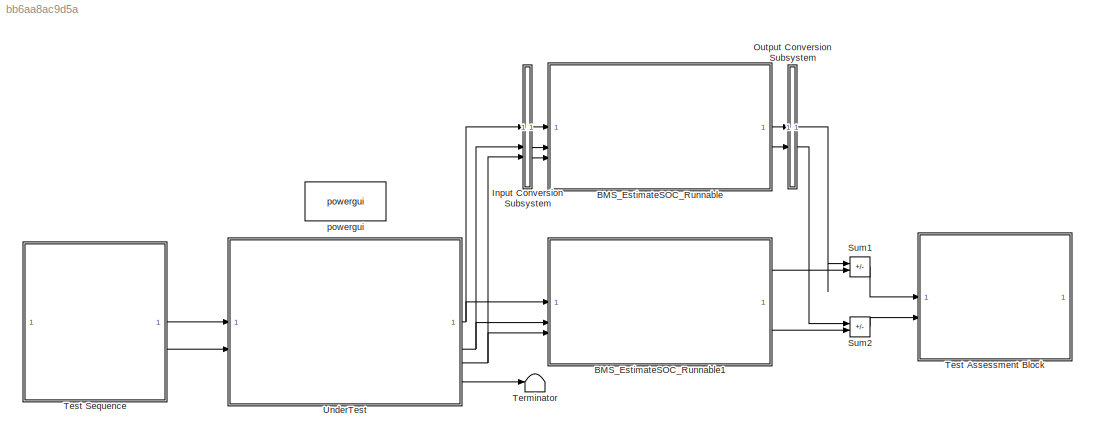
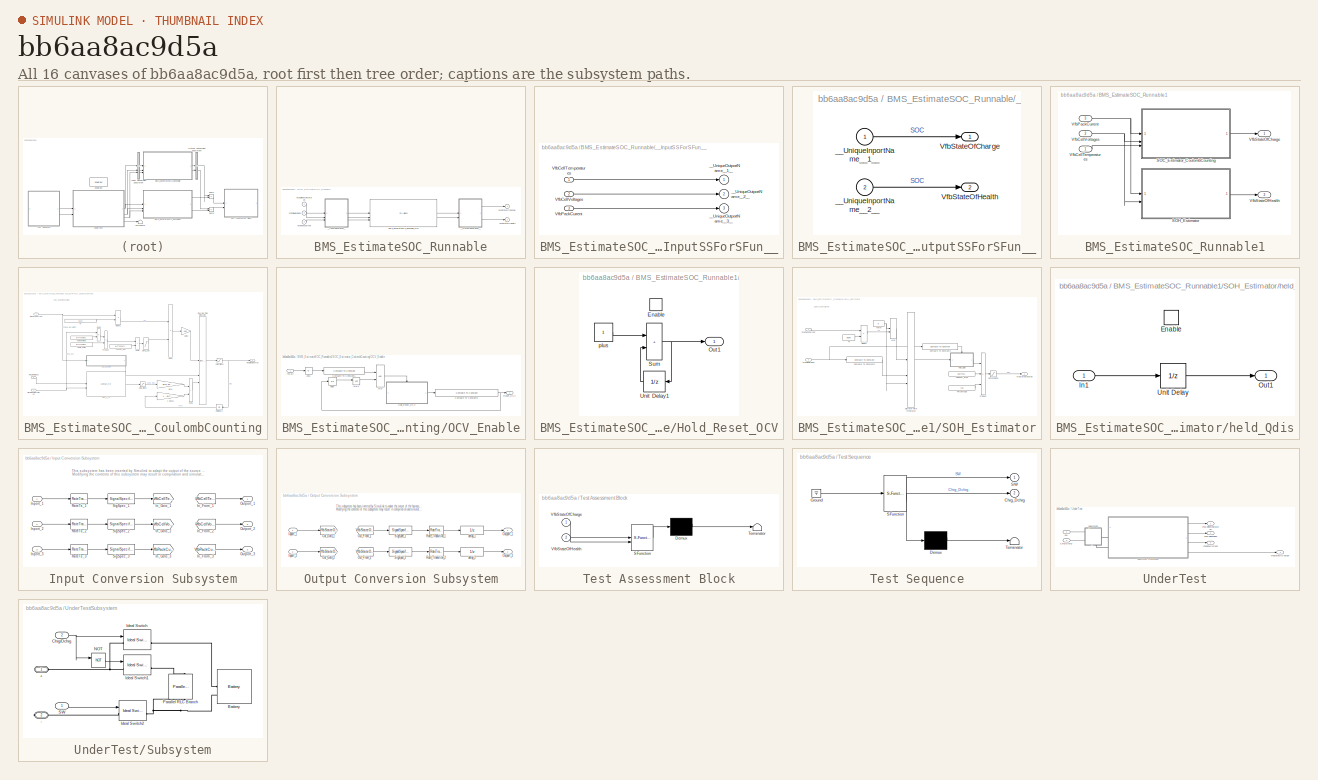
[diagram: thumbnail index - all 16 canvases of the model, root first then tree order]
MODEL slx_bb6aa8ac9d5a
KIND model
CONFIG AbsTol = auto
CONFIG EnableMultiTasking = on
CONFIG FixedStep = auto
CONFIG MaxStep = auto
CONFIG MinStep = auto
CONFIG RelTol = 1e-3
CONFIG SampleTimeConstraint = Unconstrained
CONFIG SolverName = FixedStepDiscrete
CONFIG StartTime = 0.0
CONFIG StopTime = 10.0
BLOCK [SubSystem] BMS_EstimateSOC_Runnable
  DialogController = pil_create_dialog
  LoadFcn = try\n   if ~strcmp(rtw.pil.getPILVersion, '9.13 (R2022b)_15')\n      set_param(gcb, 'DialogController', '');\n      set_param(gcb, 'DialogControllerArgs', '');\n   end\ncatch e\n      set_param(gcb, 'DialogController', '');\n      set_param(gcb, 'DialogControllerArgs', '');\nend
  Tag = __SL_testing_harness_stub_
BLOCK [Reference] BMS_EstimateSOC_Runnable/BMS_EstimateSOC_Runnable_sfcn  REF=pil_lib/PIL Block
  SourceBlock = pil_lib/PIL Block
  SourceType = XILBlock
BLOCK [Inport] BMS_EstimateSOC_Runnable/VfbCellTemperatures
  PortDimensions = BATT.Package.NumModules
BLOCK [Inport] BMS_EstimateSOC_Runnable/VfbCellVoltages
  Port = 2
  PortDimensions = BATT.Package.NumModules
BLOCK [Inport] BMS_EstimateSOC_Runnable/VfbPackCurrent
  Port = 3
BLOCK [Outport] BMS_EstimateSOC_Runnable/VfbStateOfCharge
BLOCK [Outport] BMS_EstimateSOC_Runnable/VfbStateOfHealth
  Port = 2
BLOCK [SubSystem] BMS_EstimateSOC_Runnable/__InputSSForSFun__
  PermitHierarchicalResolution = ExplicitOnly
BLOCK [Inport] BMS_EstimateSOC_Runnable/__InputSSForSFun__/VfbCellTemperatures
  PortDimensions = BATT.Package.NumModules
BLOCK [Inport] BMS_EstimateSOC_Runnable/__InputSSForSFun__/VfbCellVoltages
  Port = 2
  PortDimensions = BATT.Package.NumModules
BLOCK [Inport] BMS_EstimateSOC_Runnable/__InputSSForSFun__/VfbPackCurrent
  Port = 3
BLOCK [Outport] BMS_EstimateSOC_Runnable/__InputSSForSFun__/__UniqueOutportName__1__
BLOCK [Outport] BMS_EstimateSOC_Runnable/__InputSSForSFun__/__UniqueOutportName__2__
  Port = 2
BLOCK [Outport] BMS_EstimateSOC_Runnable/__InputSSForSFun__/__UniqueOutportName__3__
  Port = 3
BLOCK [SubSystem] BMS_EstimateSOC_Runnable/__OutputSSForSFun__
  PermitHierarchicalResolution = ExplicitOnly
BLOCK [Outport] BMS_EstimateSOC_Runnable/__OutputSSForSFun__/VfbStateOfCharge
BLOCK [Outport] BMS_EstimateSOC_Runnable/__OutputSSForSFun__/VfbStateOfHealth
  Port = 2
BLOCK [Inport] BMS_EstimateSOC_Runnable/__OutputSSForSFun__/__UniqueInportName__1__
BLOCK [Inport] BMS_EstimateSOC_Runnable/__OutputSSForSFun__/__UniqueInportName__2__
  Port = 2
BLOCK [SubSystem] BMS_EstimateSOC_Runnable1
  FunctionInterfaceSpec = Allow arguments (Optimized)
  PartitionName = BMS_EstimateSOC_Task
  Priority = 3
  RTWFcnNameOpts = Use subsystem name
  RTWSystemCode = Nonreusable function
  ScheduleAs = Periodic partition
  SystemSampleTime = Schedule.BMS_EstimateSOC_Task
  Tag = BMS_EstimateSOC_Task
  TreatAsAtomicUnit = on
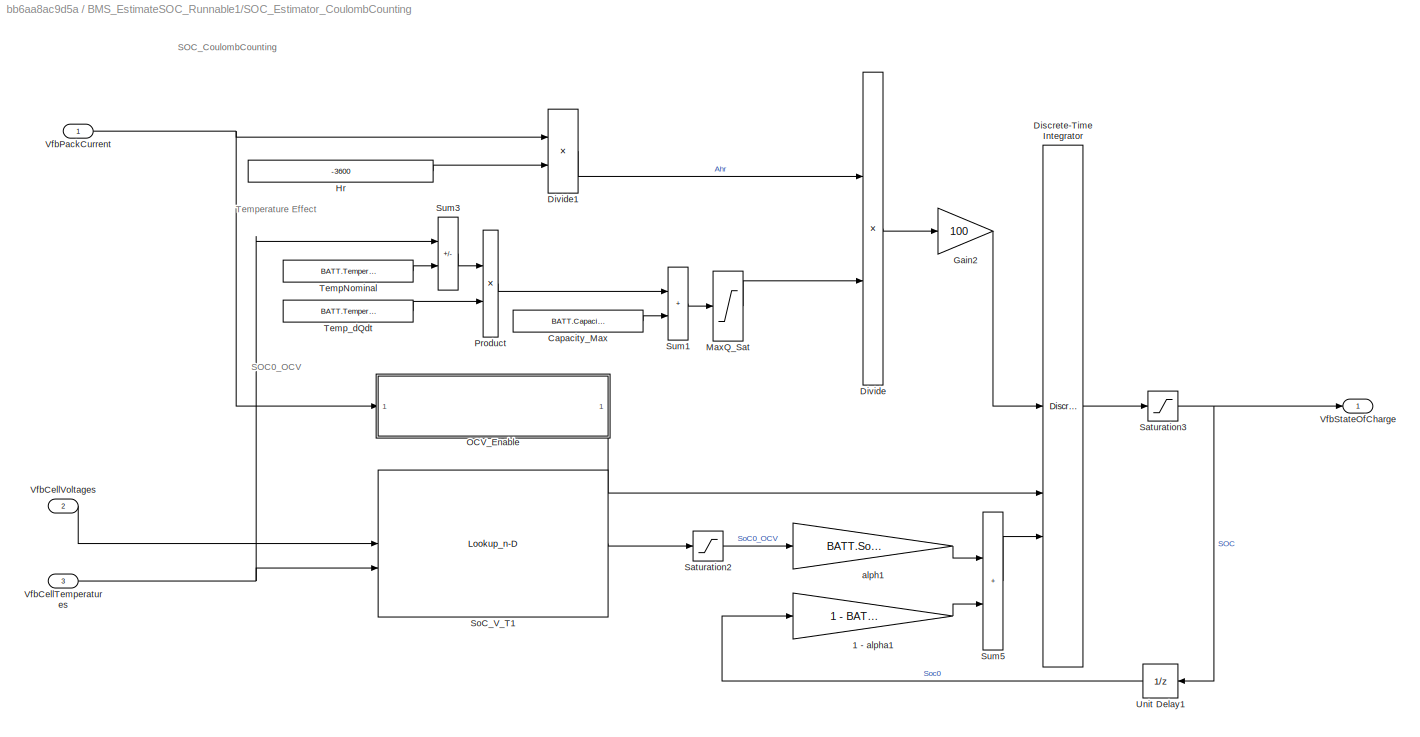
BLOCK [SubSystem] BMS_EstimateSOC_Runnable1/SOC_Estimator_CoulombCounting
  FunctionInterfaceSpec = Allow arguments (Optimized)
  RTWSystemCode = Nonreusable function
  TreatAsAtomicUnit = on
BLOCK [Gain] BMS_EstimateSOC_Runnable1/SOC_Estimator_CoulombCounting/1 - alpha1
  Gain = 1 - BATT.SoC.alpha
BLOCK [Constant] BMS_EstimateSOC_Runnable1/SOC_Estimator_CoulombCounting/Capacity_Max
  Value = BATT.Capacity.Max
BLOCK [DiscreteIntegrator] BMS_EstimateSOC_Runnable1/SOC_Estimator_CoulombCounting/Discrete-Time Integrator
  ExternalReset = rising
  ICPrevOutput = DiscIntNeverNeededParam
  ICPrevScaledInput = DiscIntNeverNeededParam
  InitialCondition = BATT.SOC.SoC0
  InitialConditionSource = external
  SampleTime = -1
BLOCK [Product] BMS_EstimateSOC_Runnable1/SOC_Estimator_CoulombCounting/Divide
  Inputs = */
  NameLocation = top
  OutDataTypeStr = single
BLOCK [Product] BMS_EstimateSOC_Runnable1/SOC_Estimator_CoulombCounting/Divide1
  Inputs = */
BLOCK [Gain] BMS_EstimateSOC_Runnable1/SOC_Estimator_CoulombCounting/Gain2
  Gain = 100
  OutDataTypeStr = single
BLOCK [Constant] BMS_EstimateSOC_Runnable1/SOC_Estimator_CoulombCounting/Hr
  OutDataTypeStr = single
  Value = -3600
BLOCK [Saturate] BMS_EstimateSOC_Runnable1/SOC_Estimator_CoulombCounting/MaxQ_Sat
  LowerLimit = 0
  UpperLimit = BATT.Capacity.Max
BLOCK [SubSystem] BMS_EstimateSOC_Runnable1/SOC_Estimator_CoulombCounting/OCV_Enable
BLOCK [Logic] BMS_EstimateSOC_Runnable1/SOC_Estimator_CoulombCounting/OCV_Enable/AND
  AllPortsSameDT = off
  OutDataTypeStr = boolean
BLOCK [Abs] BMS_EstimateSOC_Runnable1/SOC_Estimator_CoulombCounting/OCV_Enable/Abs1
  SaturateOnIntegerOverflow = off
BLOCK [Reference] BMS_EstimateSOC_Runnable1/SOC_Estimator_CoulombCounting/OCV_Enable/Compare To Constant1  REF=simulink/Logic and Bit
Operations/Compare
To Constant
  SourceBlock = simulink/Logic and Bit\nOperations/Compare\nTo Constant
  SourceType = Compare To Constant
BLOCK [Reference] BMS_EstimateSOC_Runnable1/SOC_Estimator_CoulombCounting/OCV_Enable/Compare To Constant2  REF=simulink/Logic and Bit
Operations/Compare
To Constant
  SourceBlock = simulink/Logic and Bit\nOperations/Compare\nTo Constant
  SourceType = Compare To Constant
BLOCK [SubSystem] BMS_EstimateSOC_Runnable1/SOC_Estimator_CoulombCounting/OCV_Enable/Hold_Reset_OCV
BLOCK [EnablePort] BMS_EstimateSOC_Runnable1/SOC_Estimator_CoulombCounting/OCV_Enable/Hold_Reset_OCV/Enable
  StatesWhenEnabling = reset
BLOCK [Outport] BMS_EstimateSOC_Runnable1/SOC_Estimator_CoulombCounting/OCV_Enable/Hold_Reset_OCV/Out1
  InitialOutput = 0
  OutputWhenDisabled = reset
BLOCK [Sum] BMS_EstimateSOC_Runnable1/SOC_Estimator_CoulombCounting/OCV_Enable/Hold_Reset_OCV/Sum
  IconShape = rectangular
BLOCK [UnitDelay] BMS_EstimateSOC_Runnable1/SOC_Estimator_CoulombCounting/OCV_Enable/Hold_Reset_OCV/Unit Delay1
  HasFrameUpgradeWarning = on
  SampleTime = -1
BLOCK [Constant] BMS_EstimateSOC_Runnable1/SOC_Estimator_CoulombCounting/OCV_Enable/Hold_Reset_OCV/plus
BLOCK [Inport] BMS_EstimateSOC_Runnable1/SOC_Estimator_CoulombCounting/OCV_Enable/InCurr
BLOCK [Logic] BMS_EstimateSOC_Runnable1/SOC_Estimator_CoulombCounting/OCV_Enable/NOT
  AllPortsSameDT = off
  Operator = NOT
  OutDataTypeStr = boolean
BLOCK [Outport] BMS_EstimateSOC_Runnable1/SOC_Estimator_CoulombCounting/OCV_Enable/Reset_OCV
BLOCK [UnitDelay] BMS_EstimateSOC_Runnable1/SOC_Estimator_CoulombCounting/OCV_Enable/delay
  HasFrameUpgradeWarning = on
  SampleTime = -1
BLOCK [Product] BMS_EstimateSOC_Runnable1/SOC_Estimator_CoulombCounting/Product
BLOCK [Saturate] BMS_EstimateSOC_Runnable1/SOC_Estimator_CoulombCounting/Saturation2
  LowerLimit = BATT.SoC.min
  OutDataTypeStr = single
  UpperLimit = BATT.SoC.max
BLOCK [Saturate] BMS_EstimateSOC_Runnable1/SOC_Estimator_CoulombCounting/Saturation3
  LowerLimit = BATT.SoC.min
  OutDataTypeStr = single
  UpperLimit = BATT.SoC.max
BLOCK [Lookup_n-D] BMS_EstimateSOC_Runnable1/SOC_Estimator_CoulombCounting/SoC_V_T1
  BreakpointsForDimension1 = BATT.Voltage.V_LUT
  BreakpointsForDimension2 = BATT.Temperature.T_LUT
  InputPortMap = u0,u1
  InternalRulePriority = Speed
  RndMeth = Simplest
  Table = BATT.SoC.TableData
BLOCK [Sum] BMS_EstimateSOC_Runnable1/SOC_Estimator_CoulombCounting/Sum1
  IconShape = rectangular
BLOCK [Sum] BMS_EstimateSOC_Runnable1/SOC_Estimator_CoulombCounting/Sum3
  IconShape = rectangular
  Inputs = +-
BLOCK [Sum] BMS_EstimateSOC_Runnable1/SOC_Estimator_CoulombCounting/Sum5
  IconShape = rectangular
BLOCK [Constant] BMS_EstimateSOC_Runnable1/SOC_Estimator_CoulombCounting/TempNominal
  Value = BATT.Temperature.Nominal
BLOCK [Constant] BMS_EstimateSOC_Runnable1/SOC_Estimator_CoulombCounting/Temp_dQdt
  Value = BATT.Temperature.dQ_dt
BLOCK [UnitDelay] BMS_EstimateSOC_Runnable1/SOC_Estimator_CoulombCounting/Unit Delay1
  HasFrameUpgradeWarning = on
  InitialCondition = BATT.SoC.SoC0 * ones(BATT.Package.Ns_Module, BATT.Package.NumModules)
  SampleTime = -1
BLOCK [Inport] BMS_EstimateSOC_Runnable1/SOC_Estimator_CoulombCounting/VfbCellTemperatures
  Port = 3
BLOCK [Inport] BMS_EstimateSOC_Runnable1/SOC_Estimator_CoulombCounting/VfbCellVoltages
  Port = 2
  PortDimensions = BATT.Package.NumModules
BLOCK [Inport] BMS_EstimateSOC_Runnable1/SOC_Estimator_CoulombCounting/VfbPackCurrent
BLOCK [Outport] BMS_EstimateSOC_Runnable1/SOC_Estimator_CoulombCounting/VfbStateOfCharge
BLOCK [Gain] BMS_EstimateSOC_Runnable1/SOC_Estimator_CoulombCounting/alph1
  Gain = BATT.SoC.alpha
BLOCK [SubSystem] BMS_EstimateSOC_Runnable1/SOH_Estimator
  FunctionInterfaceSpec = Allow arguments (Optimized)
  RTWSystemCode = Nonreusable function
  TreatAsAtomicUnit = on
BLOCK [Constant] BMS_EstimateSOC_Runnable1/SOH_Estimator/Capacity_Max
  Value = 1 / BATT.Capacity.Max
BLOCK [Reference] BMS_EstimateSOC_Runnable1/SOH_Estimator/Compare To Constant1  REF=simulink/Logic and Bit
Operations/Compare
To Constant
  SourceBlock = simulink/Logic and Bit\nOperations/Compare\nTo Constant
  SourceType = Compare To Constant
BLOCK [Reference] BMS_EstimateSOC_Runnable1/SOH_Estimator/Compare To Constant2  REF=simulink/Logic and Bit
Operations/Compare
To Constant
  SourceBlock = simulink/Logic and Bit\nOperations/Compare\nTo Constant
  SourceType = Compare To Constant
BLOCK [DiscreteIntegrator] BMS_EstimateSOC_Runnable1/SOH_Estimator/Discrete-Time Integrator
  ExternalReset = rising
  ICPrevOutput = DiscIntNeverNeededParam
  ICPrevScaledInput = DiscIntNeverNeededParam
  InitialCondition = BATT.SOC.SoC0
  InitialConditionSource = external
  SampleTime = -1
BLOCK [Product] BMS_EstimateSOC_Runnable1/SOH_Estimator/Divide1
  Inputs = */
BLOCK [Constant] BMS_EstimateSOC_Runnable1/SOH_Estimator/Hr
  OutDataTypeStr = single
  Value = 3600
BLOCK [MinMax] BMS_EstimateSOC_Runnable1/SOH_Estimator/Max
  Function = max
  Inputs = 2
BLOCK [Constant] BMS_EstimateSOC_Runnable1/SOH_Estimator/Persentage
  Value = 100
BLOCK [Product] BMS_EstimateSOC_Runnable1/SOH_Estimator/Product
  Inputs = 3
BLOCK [Saturate] BMS_EstimateSOC_Runnable1/SOH_Estimator/Saturation3
  LowerLimit = BATT.SoC.min
  OutDataTypeStr = single
  UpperLimit = BATT.SoC.max
BLOCK [Inport] BMS_EstimateSOC_Runnable1/SOH_Estimator/VfbCellVoltages
  Port = 2
  PortDimensions = BATT.Package.NumModules
BLOCK [Inport] BMS_EstimateSOC_Runnable1/SOH_Estimator/VfbPackCurrent
BLOCK [Outport] BMS_EstimateSOC_Runnable1/SOH_Estimator/VfbStateOfCharge
BLOCK [SubSystem] BMS_EstimateSOC_Runnable1/SOH_Estimator/held_Qdis
  TreatAsAtomicUnit = on
BLOCK [EnablePort] BMS_EstimateSOC_Runnable1/SOH_Estimator/held_Qdis/Enable
BLOCK [Inport] BMS_EstimateSOC_Runnable1/SOH_Estimator/held_Qdis/In1
BLOCK [Outport] BMS_EstimateSOC_Runnable1/SOH_Estimator/held_Qdis/Out1
BLOCK [UnitDelay] BMS_EstimateSOC_Runnable1/SOH_Estimator/held_Qdis/Unit Delay
  HasFrameUpgradeWarning = on
  InitialCondition = BATT.Capacity.Max
  SampleTime = -1
BLOCK [Constant] BMS_EstimateSOC_Runnable1/SOH_Estimator/minAh
  OutDataTypeStr = single
  Value = 0
BLOCK [Inport] BMS_EstimateSOC_Runnable1/VfbCellTemperatures
  PortDimensions = BATT.Package.NumModules
BLOCK [Inport] BMS_EstimateSOC_Runnable1/VfbCellVoltages
  Port = 2
  PortDimensions = BATT.Package.NumModules
BLOCK [Inport] BMS_EstimateSOC_Runnable1/VfbPackCurrent
  Port = 3
BLOCK [Outport] BMS_EstimateSOC_Runnable1/VfbStateOfCharge
BLOCK [Outport] BMS_EstimateSOC_Runnable1/VfbStateOfHealth
  Port = 2
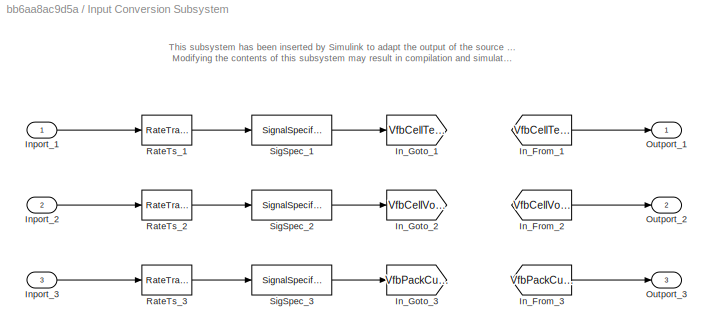
BLOCK [SubSystem] Input Conversion Subsystem
  AttributesFormatString = %<Description>
  Description = Signal spec.\nand routing
  Permissions = ReadOnly
  PermitHierarchicalResolution = ExplicitOnly
  Tag = __SLT_ICS__
  TreatAsGroupedWhenPropagatingVariantConditions = off
  UserDataPersistent = on
BLOCK [From] Input Conversion Subsystem/In_From_1
  GotoTag = VfbCellTemperatures_A
  TagVisibility = global
BLOCK [From] Input Conversion Subsystem/In_From_2
  GotoTag = VfbCellVoltages_A
  TagVisibility = global
BLOCK [From] Input Conversion Subsystem/In_From_3
  GotoTag = VfbPackCurrent_A
  TagVisibility = global
BLOCK [Goto] Input Conversion Subsystem/In_Goto_1
  GotoTag = VfbCellTemperatures_A
  TagVisibility = global
BLOCK [Goto] Input Conversion Subsystem/In_Goto_2
  GotoTag = VfbCellVoltages_A
  TagVisibility = global
BLOCK [Goto] Input Conversion Subsystem/In_Goto_3
  GotoTag = VfbPackCurrent_A
  TagVisibility = global
BLOCK [Inport] Input Conversion Subsystem/Inport_1
BLOCK [Inport] Input Conversion Subsystem/Inport_2
  Port = 2
BLOCK [Inport] Input Conversion Subsystem/Inport_3
  Port = 3
BLOCK [Outport] Input Conversion Subsystem/Outport_1
BLOCK [Outport] Input Conversion Subsystem/Outport_2
  Port = 2
BLOCK [Outport] Input Conversion Subsystem/Outport_3
  Port = 3
BLOCK [RateTransition] Input Conversion Subsystem/RateTs_1
  OutPortSampleTime = 0.2
BLOCK [RateTransition] Input Conversion Subsystem/RateTs_2
  OutPortSampleTime = 0.2
BLOCK [RateTransition] Input Conversion Subsystem/RateTs_3
  OutPortSampleTime = 0.2
BLOCK [SignalSpecification] Input Conversion Subsystem/SigSpec_1
  Dimensions = [3]
  OutDataTypeStr = single
  SampleTime = 0.2
  SignalType = real
  Unit = °C
  VarSizeSig = No
BLOCK [SignalSpecification] Input Conversion Subsystem/SigSpec_2
  Dimensions = [3]
  OutDataTypeStr = single
  SampleTime = 0.2
  SignalType = real
  Unit = V
  VarSizeSig = No
BLOCK [SignalSpecification] Input Conversion Subsystem/SigSpec_3
  Dimensions = [1]
  OutDataTypeStr = single
  SampleTime = 0.2
  SignalType = real
  Unit = A
  VarSizeSig = No
BLOCK [SubSystem] Output Conversion Subsystem
  AttributesFormatString = %<Description>
  Description = Signal spec.\nand routing
  Permissions = ReadOnly
  PermitHierarchicalResolution = ExplicitOnly
  Tag = __SLT_OCS__
  TreatAsGroupedWhenPropagatingVariantConditions = off
  UserDataPersistent = on
BLOCK [Inport] Output Conversion Subsystem/Inport_1
BLOCK [Inport] Output Conversion Subsystem/Inport_2
  Port = 2
BLOCK [From] Output Conversion Subsystem/Out_From_1
  GotoTag = VfbStateOfCharge_A
  TagVisibility = global
BLOCK [From] Output Conversion Subsystem/Out_From_2
  GotoTag = VfbStateOfHealth_A
  TagVisibility = global
BLOCK [Goto] Output Conversion Subsystem/Out_Goto_1
  GotoTag = VfbStateOfCharge_A
  TagVisibility = global
BLOCK [Goto] Output Conversion Subsystem/Out_Goto_2
  GotoTag = VfbStateOfHealth_A
  TagVisibility = global
BLOCK [Outport] Output Conversion Subsystem/Outport_1
BLOCK [Outport] Output Conversion Subsystem/Outport_2
  Port = 2
BLOCK [RateTransition] Output Conversion Subsystem/Rate_Transition_1
  OutPortSampleTimeOpt = Inherit
BLOCK [RateTransition] Output Conversion Subsystem/Rate_Transition_2
  OutPortSampleTimeOpt = Inherit
BLOCK [SignalSpecification] Output Conversion Subsystem/SigSpec_1
  Dimensions = [3]
  OutDataTypeStr = single
  SampleTime = 0.2
  SignalType = real
  VarSizeSig = No
BLOCK [SignalSpecification] Output Conversion Subsystem/SigSpec_2
  Dimensions = [3]
  OutDataTypeStr = single
  SampleTime = 0.2
  SignalType = real
  VarSizeSig = No
BLOCK [UnitDelay] Output Conversion Subsystem/delay_1
  SampleTime = -1
BLOCK [UnitDelay] Output Conversion Subsystem/delay_2
  SampleTime = -1
BLOCK [Sum] Sum1
  IconShape = rectangular
  Inputs = +-
BLOCK [Sum] Sum2
  IconShape = rectangular
  Inputs = +-
BLOCK [Terminator] Terminator
BLOCK [SubSystem] Test Assessment Block
  ErrorFcn = Stateflow.Translate.translate
  PermitHierarchicalResolution = ExplicitOnly
  SFBlockType = Test Sequence
  ShowPortLabels = none
  Tag = __SLT_ASMT__
  TreatAsAtomicUnit = on
BLOCK [Demux] Test Assessment Block/ Demux 
  Outputs = 1
BLOCK [S-Function] Test Assessment Block/ SFunction 
  EnableBusSupport = on
  FunctionName = sf_sfun
  PortCounts = [2 1]
  SFcnIsStateOwnerBlock = off
  SFunctionDeploymentMode = off
  Tag = Stateflow S-Function 2
BLOCK [Terminator] Test Assessment Block/ Terminator 
BLOCK [Inport] Test Assessment Block/VfbStateOfCharge
BLOCK [Inport] Test Assessment Block/VfbStateOfHealth
  Port = 2
BLOCK [SubSystem] Test Sequence
  ErrorFcn = Stateflow.Translate.translate
  PermitHierarchicalResolution = ExplicitOnly
  SFBlockType = Test Sequence
  ShowPortLabels = none
  TreatAsAtomicUnit = on
BLOCK [Demux] Test Sequence/ Demux 
  Outputs = 1
BLOCK [Ground] Test Sequence/ Ground 
BLOCK [S-Function] Test Sequence/ SFunction 
  EnableBusSupport = on
  FunctionName = sf_sfun
  PortCounts = [1 3]
  SFcnIsStateOwnerBlock = off
  SFunctionDeploymentMode = off
  Tag = Stateflow S-Function 3
BLOCK [Terminator] Test Sequence/ Terminator 
BLOCK [Outport] Test Sequence/Chrg_Dchrg
  Port = 2
BLOCK [Outport] Test Sequence/SW
BLOCK [SubSystem] UnderTest
BLOCK [Inport] UnderTest/Chrg//Dchrg
  Port = 2
BLOCK [Inport] UnderTest/SW
BLOCK [SubSystem] UnderTest/Subsystem
  NameLocation = left
  PortSchema = {"entries":[{"content":{"sides":[{"content":{"connectorIds":["LConn1"]},"type":"ConnectorPlacement.EquallySpacedRectSide","uuid":"a461fc5f-bdec-4de1-a769-19a6913359cb"},{"content":{"connectorIds":["RConn1"],"side":"RIGHT"},"type":"ConnectorPlacement.EquallySpacedRectSide","uuid":"53dfe770-afde-41f9-b1fd-6523bad3a9ef"},{"content":{"connectorIds":[],"side":"TOP"},"type":"ConnectorPlacement.EquallySp...<+400ch>
BLOCK [SubSystem] UnderTest/Subsystem Reference
  PortSchema = {"entries":[{"content":{"sides":[{"content":{"connectorIds":["LConn1","LConn2"]},"type":"ConnectorPlacement.EquallySpacedRectSide","uuid":"5451cb71-15b5-4b08-b1e3-78543f6c5322"},{"content":{"connectorIds":["Out2","Out1","Out4","Out3"],"side":"RIGHT"},"type":"ConnectorPlacement.EquallySpacedRectSide","uuid":"e4bd4e19-96bf-4958-bcea-cb5b9e999de9"},{"content":{"connectorIds":[],"side":"TOP"},"type":"...<+273ch>
  ReferencedSubsystem = Batter_Pack_Sim
BLOCK [PMIOPort] UnderTest/Subsystem/+
  NameLocation = left
  Side = Left
BLOCK [PMIOPort] UnderTest/Subsystem/-
  NameLocation = left
  Port = 2
  Side = Right
BLOCK [Reference] UnderTest/Subsystem/Battery  REF=spsBatteryLib/Battery
  LibrarySourceBlock = sps_lib/Sources/Battery
  SourceBlock = spsBatteryLib/Battery
  SourceType = Battery
BLOCK [Inport] UnderTest/Subsystem/Chrg//Dchrg
  NameLocation = left
  Port = 2
BLOCK [Reference] UnderTest/Subsystem/Ideal Switch  REF=spsIdealSwitchLib/Ideal Switch
  LibrarySourceBlock = sps_lib/Power Electronics/Ideal Switch
  SourceBlock = spsIdealSwitchLib/Ideal Switch
  SourceType = Ideal Switch
BLOCK [Reference] UnderTest/Subsystem/Ideal Switch1  REF=spsIdealSwitchLib/Ideal Switch
  LibrarySourceBlock = sps_lib/Power Electronics/Ideal Switch
  SourceBlock = spsIdealSwitchLib/Ideal Switch
  SourceType = Ideal Switch
BLOCK [Reference] UnderTest/Subsystem/Ideal Switch2  REF=spsIdealSwitchLib/Ideal Switch
  LibrarySourceBlock = sps_lib/Power Electronics/Ideal Switch
  SourceBlock = spsIdealSwitchLib/Ideal Switch
  SourceType = Ideal Switch
BLOCK [Logic] UnderTest/Subsystem/NOT
  AllPortsSameDT = off
  IconShape = distinctive
  Operator = NOT
  OutDataTypeStr = boolean
BLOCK [Reference] UnderTest/Subsystem/Parallel RLC Branch  REF=spsParallelRLCBranchLib/Parallel RLC Branch
  AttributesFormatString = \n
  LibrarySourceBlock = sps_lib/Passives/Parallel RLC Branch
  NameLocation = left
  SourceBlock = spsParallelRLCBranchLib/Parallel RLC Branch
  SourceType = Parallel RLC Branch
BLOCK [Inport] UnderTest/Subsystem/SW
  NameLocation = left
BLOCK [Outport] UnderTest/VfbCellTemperatures
BLOCK [Outport] UnderTest/VfbCellVoltages
  Port = 2
BLOCK [Outport] UnderTest/VfbPackCurrent
  Port = 3
BLOCK [Outport] UnderTest/VfbStateOfCharge
  Port = 4
BLOCK [Reference] powergui  REF=spspowerguiLib/powergui
  LibrarySourceBlock = sps_lib/powergui
  Priority = 1
  SourceBlock = spspowerguiLib/powergui
  SourceType = PSB option menu block
ANNOTATION BMS_EstimateSOC_Runnable1/SOC_Estimator_CoulombCounting: SOC0_OCV
ANNOTATION BMS_EstimateSOC_Runnable1/SOC_Estimator_CoulombCounting: SOC_CoulombCounting
ANNOTATION BMS_EstimateSOC_Runnable1/SOC_Estimator_CoulombCounting: Temperature Effect
ANNOTATION BMS_EstimateSOC_Runnable1/SOH_Estimator: SOH_Accumulated
ANNOTATION Input Conversion Subsystem: This subsystem has been inserted by Simulink to adapt the output of the source blocks to the interface required by the harnessed component. Modifying the contents of this subsystem may result in compilation and simulation failure.
ANNOTATION Output Conversion Subsystem: This subsystem has been inserted by Simulink to adapt the output of the harnessed component to the interface required by the sink blocks. Modifying the contents of this subsystem may result in compilation and simulation failure.
LINE BMS_EstimateSOC_Runnable/__InputSSForSFun__/VfbCellTemperatures:1 -> BMS_EstimateSOC_Runnable/__InputSSForSFun__/__UniqueOutportName__1__:1
LINE BMS_EstimateSOC_Runnable/__InputSSForSFun__/VfbCellVoltages:1 -> BMS_EstimateSOC_Runnable/__InputSSForSFun__/__UniqueOutportName__2__:1
LINE BMS_EstimateSOC_Runnable/__InputSSForSFun__/VfbPackCurrent:1 -> BMS_EstimateSOC_Runnable/__InputSSForSFun__/__UniqueOutportName__3__:1
LINE BMS_EstimateSOC_Runnable/__OutputSSForSFun__/__UniqueInportName__1__:1 -> BMS_EstimateSOC_Runnable/__OutputSSForSFun__/VfbStateOfCharge:1
LINE BMS_EstimateSOC_Runnable/__OutputSSForSFun__/__UniqueInportName__2__:1 -> BMS_EstimateSOC_Runnable/__OutputSSForSFun__/VfbStateOfHealth:1
LINE BMS_EstimateSOC_Runnable1/SOC_Estimator_CoulombCounting/1 - alpha1:1 -> BMS_EstimateSOC_Runnable1/SOC_Estimator_CoulombCounting/Sum5:2
LINE BMS_EstimateSOC_Runnable1/SOC_Estimator_CoulombCounting/Capacity_Max:1 -> BMS_EstimateSOC_Runnable1/SOC_Estimator_CoulombCounting/Sum1:2
LINE BMS_EstimateSOC_Runnable1/SOC_Estimator_CoulombCounting/Discrete-Time Integrator:1 -> BMS_EstimateSOC_Runnable1/SOC_Estimator_CoulombCounting/Saturation3:1
LINE BMS_EstimateSOC_Runnable1/SOC_Estimator_CoulombCounting/Divide1:1 -> BMS_EstimateSOC_Runnable1/SOC_Estimator_CoulombCounting/Divide:1
LINE BMS_EstimateSOC_Runnable1/SOC_Estimator_CoulombCounting/Divide:1 -> BMS_EstimateSOC_Runnable1/SOC_Estimator_CoulombCounting/Gain2:1
LINE BMS_EstimateSOC_Runnable1/SOC_Estimator_CoulombCounting/Gain2:1 -> BMS_EstimateSOC_Runnable1/SOC_Estimator_CoulombCounting/Discrete-Time Integrator:1
LINE BMS_EstimateSOC_Runnable1/SOC_Estimator_CoulombCounting/Hr:1 -> BMS_EstimateSOC_Runnable1/SOC_Estimator_CoulombCounting/Divide1:2
LINE BMS_EstimateSOC_Runnable1/SOC_Estimator_CoulombCounting/MaxQ_Sat:1 -> BMS_EstimateSOC_Runnable1/SOC_Estimator_CoulombCounting/Divide:2
LINE BMS_EstimateSOC_Runnable1/SOC_Estimator_CoulombCounting/OCV_Enable/AND:1 -> BMS_EstimateSOC_Runnable1/SOC_Estimator_CoulombCounting/OCV_Enable/Hold_Reset_OCV:enable
LINE BMS_EstimateSOC_Runnable1/SOC_Estimator_CoulombCounting/OCV_Enable/Abs1:1 -> BMS_EstimateSOC_Runnable1/SOC_Estimator_CoulombCounting/OCV_Enable/Compare To Constant1:1
LINE BMS_EstimateSOC_Runnable1/SOC_Estimator_CoulombCounting/OCV_Enable/Compare To Constant1:1 -> BMS_EstimateSOC_Runnable1/SOC_Estimator_CoulombCounting/OCV_Enable/AND:1
NET BMS_EstimateSOC_Runnable1/SOC_Estimator_CoulombCounting/OCV_Enable/Compare To Constant2:1 -> BMS_EstimateSOC_Runnable1/SOC_Estimator_CoulombCounting/OCV_Enable/Reset_OCV:1, BMS_EstimateSOC_Runnable1/SOC_Estimator_CoulombCounting/OCV_Enable/delay:1
NET BMS_EstimateSOC_Runnable1/SOC_Estimator_CoulombCounting/OCV_Enable/Hold_Reset_OCV/Sum:1 -> BMS_EstimateSOC_Runnable1/SOC_Estimator_CoulombCounting/OCV_Enable/Hold_Reset_OCV/Out1:1, BMS_EstimateSOC_Runnable1/SOC_Estimator_CoulombCounting/OCV_Enable/Hold_Reset_OCV/Unit Delay1:1
LINE BMS_EstimateSOC_Runnable1/SOC_Estimator_CoulombCounting/OCV_Enable/Hold_Reset_OCV/Unit Delay1:1 -> BMS_EstimateSOC_Runnable1/SOC_Estimator_CoulombCounting/OCV_Enable/Hold_Reset_OCV/Sum:2
LINE BMS_EstimateSOC_Runnable1/SOC_Estimator_CoulombCounting/OCV_Enable/Hold_Reset_OCV/plus:1 -> BMS_EstimateSOC_Runnable1/SOC_Estimator_CoulombCounting/OCV_Enable/Hold_Reset_OCV/Sum:1
LINE BMS_EstimateSOC_Runnable1/SOC_Estimator_CoulombCounting/OCV_Enable/Hold_Reset_OCV:1 -> BMS_EstimateSOC_Runnable1/SOC_Estimator_CoulombCounting/OCV_Enable/Compare To Constant2:1
LINE BMS_EstimateSOC_Runnable1/SOC_Estimator_CoulombCounting/OCV_Enable/InCurr:1 -> BMS_EstimateSOC_Runnable1/SOC_Estimator_CoulombCounting/OCV_Enable/Abs1:1
LINE BMS_EstimateSOC_Runnable1/SOC_Estimator_CoulombCounting/OCV_Enable/NOT:1 -> BMS_EstimateSOC_Runnable1/SOC_Estimator_CoulombCounting/OCV_Enable/AND:2
LINE BMS_EstimateSOC_Runnable1/SOC_Estimator_CoulombCounting/OCV_Enable/delay:1 -> BMS_EstimateSOC_Runnable1/SOC_Estimator_CoulombCounting/OCV_Enable/NOT:1
LINE BMS_EstimateSOC_Runnable1/SOC_Estimator_CoulombCounting/OCV_Enable:1 -> BMS_EstimateSOC_Runnable1/SOC_Estimator_CoulombCounting/Discrete-Time Integrator:2
LINE BMS_EstimateSOC_Runnable1/SOC_Estimator_CoulombCounting/Product:1 -> BMS_EstimateSOC_Runnable1/SOC_Estimator_CoulombCounting/Sum1:1
LINE BMS_EstimateSOC_Runnable1/SOC_Estimator_CoulombCounting/Saturation2:1 -> BMS_EstimateSOC_Runnable1/SOC_Estimator_CoulombCounting/alph1:1
NET BMS_EstimateSOC_Runnable1/SOC_Estimator_CoulombCounting/Saturation3:1 -> BMS_EstimateSOC_Runnable1/SOC_Estimator_CoulombCounting/Unit Delay1:1, BMS_EstimateSOC_Runnable1/SOC_Estimator_CoulombCounting/VfbStateOfCharge:1
LINE BMS_EstimateSOC_Runnable1/SOC_Estimator_CoulombCounting/SoC_V_T1:1 -> BMS_EstimateSOC_Runnable1/SOC_Estimator_CoulombCounting/Saturation2:1
LINE BMS_EstimateSOC_Runnable1/SOC_Estimator_CoulombCounting/Sum1:1 -> BMS_EstimateSOC_Runnable1/SOC_Estimator_CoulombCounting/MaxQ_Sat:1
LINE BMS_EstimateSOC_Runnable1/SOC_Estimator_CoulombCounting/Sum3:1 -> BMS_EstimateSOC_Runnable1/SOC_Estimator_CoulombCounting/Product:1
LINE BMS_EstimateSOC_Runnable1/SOC_Estimator_CoulombCounting/Sum5:1 -> BMS_EstimateSOC_Runnable1/SOC_Estimator_CoulombCounting/Discrete-Time Integrator:3
LINE BMS_EstimateSOC_Runnable1/SOC_Estimator_CoulombCounting/TempNominal:1 -> BMS_EstimateSOC_Runnable1/SOC_Estimator_CoulombCounting/Sum3:2
LINE BMS_EstimateSOC_Runnable1/SOC_Estimator_CoulombCounting/Temp_dQdt:1 -> BMS_EstimateSOC_Runnable1/SOC_Estimator_CoulombCounting/Product:2
LINE BMS_EstimateSOC_Runnable1/SOC_Estimator_CoulombCounting/Unit Delay1:1 -> BMS_EstimateSOC_Runnable1/SOC_Estimator_CoulombCounting/1 - alpha1:1
NET BMS_EstimateSOC_Runnable1/SOC_Estimator_CoulombCounting/VfbCellTemperatures:1 -> BMS_EstimateSOC_Runnable1/SOC_Estimator_CoulombCounting/SoC_V_T1:2, BMS_EstimateSOC_Runnable1/SOC_Estimator_CoulombCounting/Sum3:1
LINE BMS_EstimateSOC_Runnable1/SOC_Estimator_CoulombCounting/VfbCellVoltages:1 -> BMS_EstimateSOC_Runnable1/SOC_Estimator_CoulombCounting/SoC_V_T1:1
NET BMS_EstimateSOC_Runnable1/SOC_Estimator_CoulombCounting/VfbPackCurrent:1 -> BMS_EstimateSOC_Runnable1/SOC_Estimator_CoulombCounting/Divide1:1, BMS_EstimateSOC_Runnable1/SOC_Estimator_CoulombCounting/OCV_Enable:1
LINE BMS_EstimateSOC_Runnable1/SOC_Estimator_CoulombCounting/alph1:1 -> BMS_EstimateSOC_Runnable1/SOC_Estimator_CoulombCounting/Sum5:1
LINE BMS_EstimateSOC_Runnable1/SOC_Estimator_CoulombCounting:1 -> BMS_EstimateSOC_Runnable1/VfbStateOfCharge:1
LINE BMS_EstimateSOC_Runnable1/SOH_Estimator/Capacity_Max:1 -> BMS_EstimateSOC_Runnable1/SOH_Estimator/Product:2
LINE BMS_EstimateSOC_Runnable1/SOH_Estimator/Compare To Constant1:1 -> BMS_EstimateSOC_Runnable1/SOH_Estimator/Discrete-Time Integrator:2
LINE BMS_EstimateSOC_Runnable1/SOH_Estimator/Compare To Constant2:1 -> BMS_EstimateSOC_Runnable1/SOH_Estimator/held_Qdis:enable
LINE BMS_EstimateSOC_Runnable1/SOH_Estimator/Discrete-Time Integrator:1 -> BMS_EstimateSOC_Runnable1/SOH_Estimator/held_Qdis:1
LINE BMS_EstimateSOC_Runnable1/SOH_Estimator/Divide1:1 -> BMS_EstimateSOC_Runnable1/SOH_Estimator/Max:2
LINE BMS_EstimateSOC_Runnable1/SOH_Estimator/Hr:1 -> BMS_EstimateSOC_Runnable1/SOH_Estimator/Divide1:2
LINE BMS_EstimateSOC_Runnable1/SOH_Estimator/Max:1 -> BMS_EstimateSOC_Runnable1/SOH_Estimator/Discrete-Time Integrator:1
LINE BMS_EstimateSOC_Runnable1/SOH_Estimator/Persentage:1 -> BMS_EstimateSOC_Runnable1/SOH_Estimator/Product:3
LINE BMS_EstimateSOC_Runnable1/SOH_Estimator/Product:1 -> BMS_EstimateSOC_Runnable1/SOH_Estimator/Saturation3:1
LINE BMS_EstimateSOC_Runnable1/SOH_Estimator/Saturation3:1 -> BMS_EstimateSOC_Runnable1/SOH_Estimator/VfbStateOfCharge:1
NET BMS_EstimateSOC_Runnable1/SOH_Estimator/VfbCellVoltages:1 -> BMS_EstimateSOC_Runnable1/SOH_Estimator/Compare To Constant1:1, BMS_EstimateSOC_Runnable1/SOH_Estimator/Compare To Constant2:1
LINE BMS_EstimateSOC_Runnable1/SOH_Estimator/VfbPackCurrent:1 -> BMS_EstimateSOC_Runnable1/SOH_Estimator/Divide1:1
LINE BMS_EstimateSOC_Runnable1/SOH_Estimator/held_Qdis/In1:1 -> BMS_EstimateSOC_Runnable1/SOH_Estimator/held_Qdis/Unit Delay:1
LINE BMS_EstimateSOC_Runnable1/SOH_Estimator/held_Qdis/Unit Delay:1 -> BMS_EstimateSOC_Runnable1/SOH_Estimator/held_Qdis/Out1:1
LINE BMS_EstimateSOC_Runnable1/SOH_Estimator/held_Qdis:1 -> BMS_EstimateSOC_Runnable1/SOH_Estimator/Product:1
NET BMS_EstimateSOC_Runnable1/SOH_Estimator/minAh:1 -> BMS_EstimateSOC_Runnable1/SOH_Estimator/Discrete-Time Integrator:3, BMS_EstimateSOC_Runnable1/SOH_Estimator/Max:1
LINE BMS_EstimateSOC_Runnable1/SOH_Estimator:1 -> BMS_EstimateSOC_Runnable1/VfbStateOfHealth:1
LINE BMS_EstimateSOC_Runnable1/VfbCellTemperatures:1 -> BMS_EstimateSOC_Runnable1/SOC_Estimator_CoulombCounting:3
NET BMS_EstimateSOC_Runnable1/VfbCellVoltages:1 -> BMS_EstimateSOC_Runnable1/SOC_Estimator_CoulombCounting:2, BMS_EstimateSOC_Runnable1/SOH_Estimator:2
NET BMS_EstimateSOC_Runnable1/VfbPackCurrent:1 -> BMS_EstimateSOC_Runnable1/SOC_Estimator_CoulombCounting:1, BMS_EstimateSOC_Runnable1/SOH_Estimator:1
LINE BMS_EstimateSOC_Runnable1:1 -> Sum1:2
LINE BMS_EstimateSOC_Runnable1:2 -> Sum2:2
LINE BMS_EstimateSOC_Runnable:1 -> Output Conversion Subsystem:1
LINE BMS_EstimateSOC_Runnable:2 -> Output Conversion Subsystem:2
LINE Input Conversion Subsystem/In_From_1:1 -> Input Conversion Subsystem/Outport_1:1
LINE Input Conversion Subsystem/In_From_2:1 -> Input Conversion Subsystem/Outport_2:1
LINE Input Conversion Subsystem/In_From_3:1 -> Input Conversion Subsystem/Outport_3:1
LINE Input Conversion Subsystem/Inport_1:1 -> Input Conversion Subsystem/RateTs_1:1
LINE Input Conversion Subsystem/Inport_2:1 -> Input Conversion Subsystem/RateTs_2:1
LINE Input Conversion Subsystem/Inport_3:1 -> Input Conversion Subsystem/RateTs_3:1
LINE Input Conversion Subsystem/RateTs_1:1 -> Input Conversion Subsystem/SigSpec_1:1
LINE Input Conversion Subsystem/RateTs_2:1 -> Input Conversion Subsystem/SigSpec_2:1
LINE Input Conversion Subsystem/RateTs_3:1 -> Input Conversion Subsystem/SigSpec_3:1
LINE Input Conversion Subsystem/SigSpec_1:1 -> Input Conversion Subsystem/In_Goto_1:1
LINE Input Conversion Subsystem/SigSpec_2:1 -> Input Conversion Subsystem/In_Goto_2:1
LINE Input Conversion Subsystem/SigSpec_3:1 -> Input Conversion Subsystem/In_Goto_3:1
LINE Input Conversion Subsystem:1 -> BMS_EstimateSOC_Runnable:1
LINE Input Conversion Subsystem:2 -> BMS_EstimateSOC_Runnable:2
LINE Input Conversion Subsystem:3 -> BMS_EstimateSOC_Runnable:3
LINE Output Conversion Subsystem/Inport_1:1 -> Output Conversion Subsystem/Out_Goto_1:1
LINE Output Conversion Subsystem/Inport_2:1 -> Output Conversion Subsystem/Out_Goto_2:1
LINE Output Conversion Subsystem/Out_From_1:1 -> Output Conversion Subsystem/SigSpec_1:1
LINE Output Conversion Subsystem/Out_From_2:1 -> Output Conversion Subsystem/SigSpec_2:1
LINE Output Conversion Subsystem/Rate_Transition_1:1 -> Output Conversion Subsystem/delay_1:1
LINE Output Conversion Subsystem/Rate_Transition_2:1 -> Output Conversion Subsystem/delay_2:1
LINE Output Conversion Subsystem/SigSpec_1:1 -> Output Conversion Subsystem/Rate_Transition_1:1
LINE Output Conversion Subsystem/SigSpec_2:1 -> Output Conversion Subsystem/Rate_Transition_2:1
LINE Output Conversion Subsystem/delay_1:1 -> Output Conversion Subsystem/Outport_1:1
LINE Output Conversion Subsystem/delay_2:1 -> Output Conversion Subsystem/Outport_2:1
LINE Output Conversion Subsystem:1 -> Sum1:1
LINE Output Conversion Subsystem:2 -> Sum2:1
LINE Sum1:1 -> Test Assessment Block:1
LINE Sum2:1 -> Test Assessment Block:2
LINE Test Sequence:1 -> UnderTest:1
LINE Test Sequence:2 -> UnderTest:2
LINE UnderTest/Chrg//Dchrg:1 -> UnderTest/Subsystem:2
LINE UnderTest/SW:1 -> UnderTest/Subsystem:1
LINE UnderTest/Subsystem Reference:1 -> UnderTest/VfbCellVoltages:1
LINE UnderTest/Subsystem Reference:2 -> UnderTest/VfbCellTemperatures:1
LINE UnderTest/Subsystem Reference:3 -> UnderTest/VfbStateOfCharge:1
LINE UnderTest/Subsystem Reference:4 -> UnderTest/VfbPackCurrent:1
NET UnderTest/Subsystem/Chrg//Dchrg:1 -> UnderTest/Subsystem/Ideal Switch:1, UnderTest/Subsystem/NOT:1
LINE UnderTest/Subsystem/NOT:1 -> UnderTest/Subsystem/Ideal Switch1:1
LINE UnderTest/Subsystem/SW:1 -> UnderTest/Subsystem/Ideal Switch2:1
NET UnderTest:1 -> BMS_EstimateSOC_Runnable1:1, Input Conversion Subsystem:1
NET UnderTest:2 -> BMS_EstimateSOC_Runnable1:2, Input Conversion Subsystem:2
NET UnderTest:3 -> BMS_EstimateSOC_Runnable1:3, Input Conversion Subsystem:3
LINE UnderTest:4 -> Terminator:1
PLINE UnderTest/Subsystem Reference:LConn1 -- UnderTest/Subsystem:LConn1
PLINE UnderTest/Subsystem Reference:LConn2 -- UnderTest/Subsystem:RConn1
PNET net1: UnderTest/Subsystem/+:RConn1 -- UnderTest/Subsystem/Ideal Switch1:LConn1 -- UnderTest/Subsystem/Ideal Switch:LConn1
PLINE UnderTest/Subsystem/-:RConn1 -- UnderTest/Subsystem/Ideal Switch2:LConn1
PLINE UnderTest/Subsystem/Battery:LConn1 -- UnderTest/Subsystem/Ideal Switch:RConn1
PNET net2: UnderTest/Subsystem/Battery:LConn2 -- UnderTest/Subsystem/Ideal Switch2:RConn1 -- UnderTest/Subsystem/Parallel RLC Branch:RConn1
PLINE UnderTest/Subsystem/Ideal Switch1:RConn1 -- UnderTest/Subsystem/Parallel RLC Branch:LConn1
note: NET lines group one-source signal fan-out (src -> all destinations, sorted); 1:1 wires keep LINE; PNET lines group multi-terminal physical nets as a canonical sorted terminal list (undirected conserving connections); 2-terminal nets keep the pairwise PLINE form
CHART Test Assessment Block states=3 transitions=10
  STATE_LABEL 'Run\n\n'
  STATE_LABEL 'step_1_1'
  STATE_LABEL 'step_1_2'
  STATE_LABEL '[t < 5\n]'
  STATE_LABEL '[~in(Run.step_1_1)]'
  STATE_LABEL '[~in(Run.step_1_2)]'
  STATE_LABEL 'step_1_1'
  STATE_LABEL 'step_1_2'
CHART Test Sequence states=1 transitions=1
  STATE_LABEL 'Run\n\n%% Initialize data outputs.\nSW = 1;\nChrg_Dchrg = 0;'
